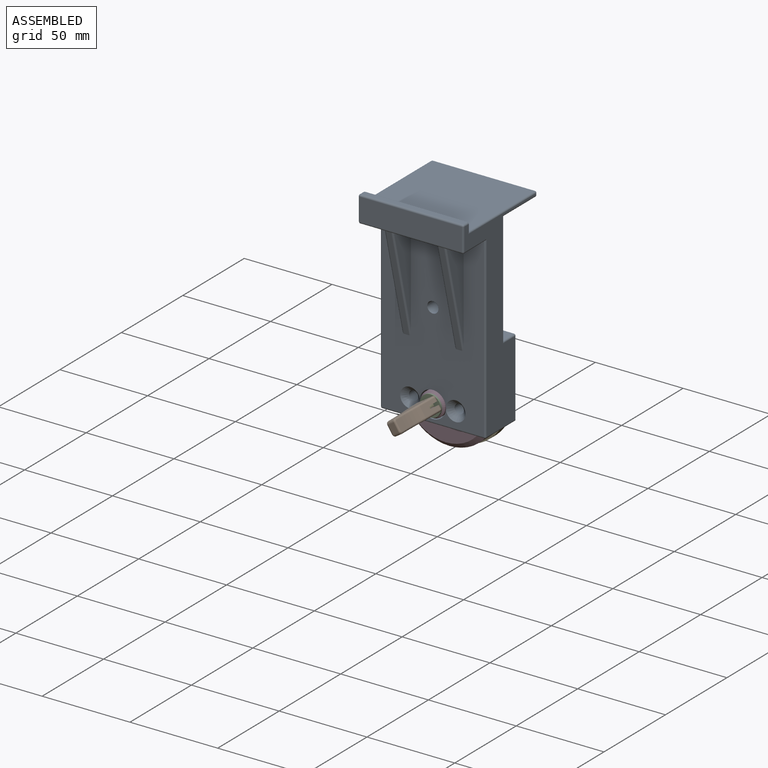
[diagram: assembled view]
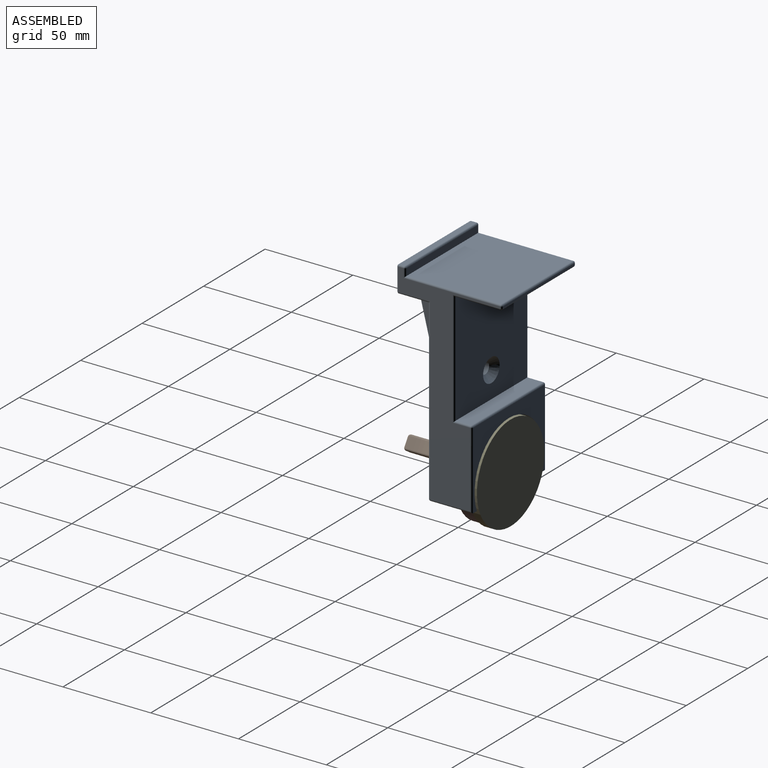
[diagram: assembled view, second angle]
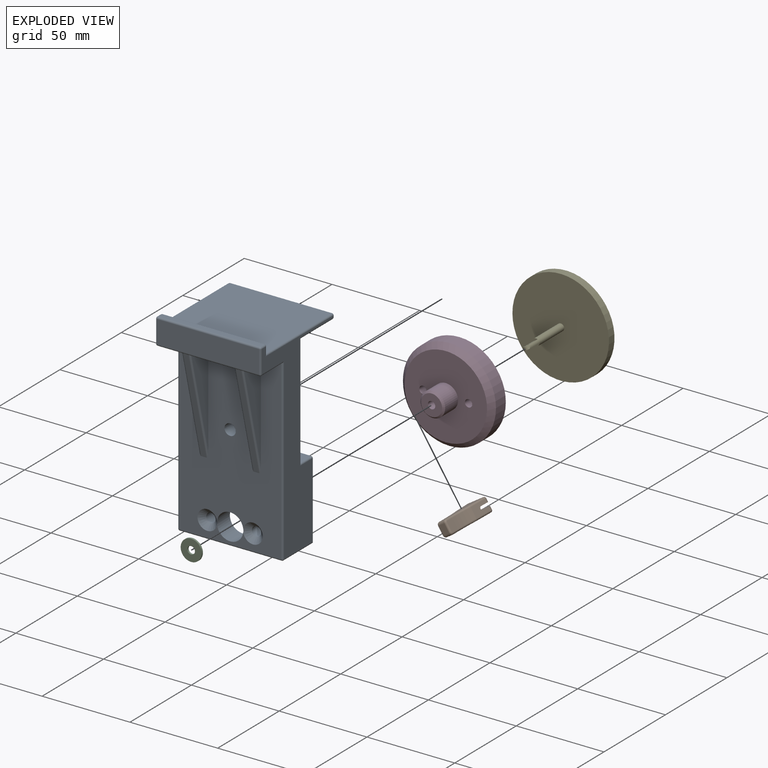
[diagram: exploded view]
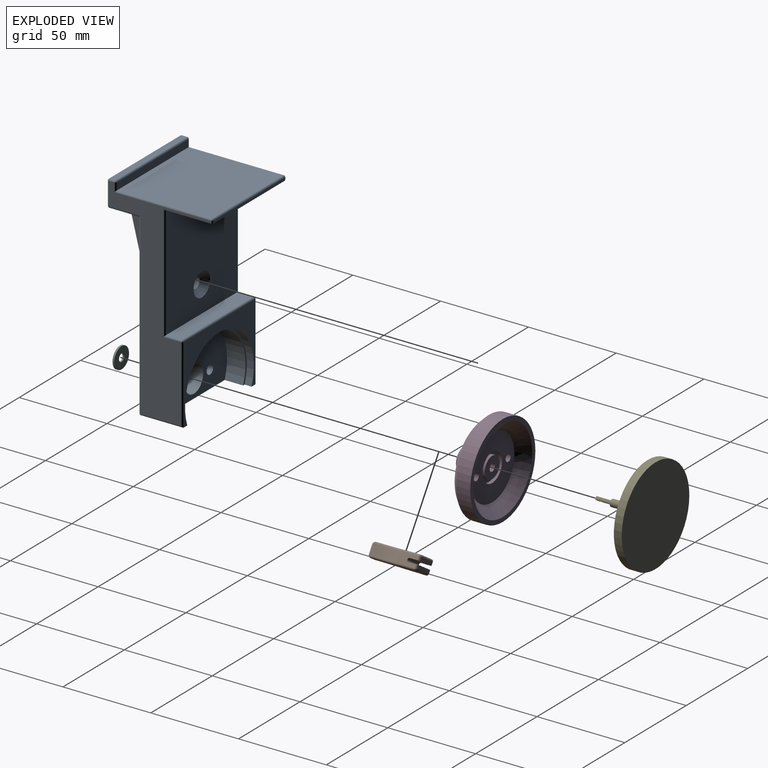
[diagram: exploded view, second angle]
ASSEMBLY  parts=5 mates=9
PART A: 80 faces, bbox 60x60x117 mm
  f0: plane 101x58mm, normal (0,-1,0), area 4855.8mm2, adj f1,f12,f19,f21,f47,f50,f63,f68
  f1: cylinder r=7.5mm len=15mm, axis (0,1,0), area 494.6mm2, adj f0,f18,f19,f21
  f2: plane 58x24mm, normal (0,0,-1), area 658.4mm2, adj f3,f15,f16,f17,f18,f51,f54,f63
  f3: plane 58x44mm, normal (0,1,0), area 772.6mm2, adj f2,f15,f55,f58,f61
  f4: plane 58x9mm, normal (0,0,1), area 522mm2, adj f5,f56,f57,f61
  f5: plane 64x58mm, normal (0,1,0), area 3570.1mm2, adj f4,f6,f52,f53,f79
  f6: plane 58x26mm, normal (0,0,-1), area 1508mm2, adj f5,f40,f48,f49
  f7: plane 58x1mm, normal (0,1,0), area 58mm2, adj f30,f39,f40,f41
  f8: plane 58x54mm, normal (0,0,1), area 3132mm2, adj f9,f29,f30,f31
  f9: plane 58x4mm, normal (0,1,0), area 232mm2, adj f8,f23,f25,f26
  f10: plane 58x3mm, normal (0,0,1), area 174mm2, adj f23,f28,f32,f33
  f11: plane 58x13mm, normal (0,-1,0), area 754mm2, adj f33,f38,f42,f66
  f12: plane 58x17mm, normal (0,0,-1), area 836.9mm2, adj f0,f43,f46,f66,f68,f69,f70,f71
  f13: plane 115x58mm, normal (1,0,0), area 2046mm2, adj f25,f28,f29,f38,f39,f43,f47,f48
  f14: plane 115x58mm, normal (-1,0,0), area 2046mm2, adj f26,f31,f32,f41,f42,f46,f49,f50
  f15: cylinder r=28mm len=56mm, axis (0,1,0), area 433.7mm2, adj f2,f3,f16
  f16: plane 56x38mm, normal (0,1,0), area 117.4mm2, adj f2,f15,f17
  f17: cylinder r=26.9mm len=53.8mm, axis (0,1,0), area 1102.5mm2, adj f2,f16,f18
  f18: plane 53.8x36.9mm, normal (0,1,0), area 1441.1mm2, adj f1,f2,f17,f20,f22
  f19: cone r=2.65mm half-angle=45deg, axis (0,-1,0), area 108mm2, adj f0,f1,f20
  f20: cylinder r=2.65mm len=7.55mm, axis (0,-1,0), area 125.7mm2, adj f18,f19
  f21: cone r=2.65mm half-angle=45deg, axis (0,-1,0), area 108mm2, adj f0,f1,f22
  f22: cylinder r=2.65mm len=7.55mm, axis (0,-1,0), area 125.7mm2, adj f18,f21
  f23: cylinder r=1mm len=58mm, axis (-1,0,0), area 91.1mm2, adj f9,f10,f24,f27
  f24: sphere r=1mm, area 1.6mm2, adj f23,f25,f28
  f25: cylinder r=1mm len=5mm, axis (0,0,-1), area 6.9mm2, adj f9,f13,f24,f29
  f26: cylinder r=1mm len=5mm, axis (0,0,1), area 6.9mm2, adj f9,f14,f27,f31
  f27: sphere r=1mm, area 1.6mm2, adj f23,f26,f32
  f28: cylinder r=1mm len=3mm, axis (0,1,0), area 4.7mm2, adj f10,f13,f24,f34
  f29: cylinder r=1mm len=55mm, axis (0,1,0), area 85.4mm2, adj f8,f13,f25,f35
  f30: cylinder r=1mm len=58mm, axis (-1,0,0), area 91.1mm2, adj f7,f8,f35,f36
  f31: cylinder r=1mm len=55mm, axis (0,-1,0), area 85.4mm2, adj f8,f14,f26,f36
  f32: cylinder r=1mm len=3mm, axis (0,-1,0), area 4.7mm2, adj f10,f14,f27,f37
  f33: cylinder r=1mm len=58mm, axis (-1,0,0), area 91.1mm2, adj f10,f11,f34,f37
  f34: sphere r=1mm, area 1.6mm2, adj f28,f33,f38
  f35: sphere r=1mm, area 1.6mm2, adj f29,f30,f39
  f36: sphere r=1mm, area 1.6mm2, adj f30,f31,f41
  f37: sphere r=1mm, area 1.6mm2, adj f32,f33,f42
  f38: cylinder r=1mm len=13mm, axis (0,0,1), area 20.4mm2, adj f11,f13,f34,f67
  f39: cylinder r=1mm len=1mm, axis (0,0,-1), area 1.6mm2, adj f7,f13,f35,f44
  f40: cylinder r=1mm len=58mm, axis (-1,0,0), area 91.1mm2, adj f6,f7,f44,f45
  f41: cylinder r=1mm len=1mm, axis (0,0,1), area 1.6mm2, adj f7,f14,f36,f45
  f42: cylinder r=1mm len=13mm, axis (0,0,-1), area 20.4mm2, adj f11,f14,f37,f65
  f43: cylinder r=1mm len=18mm, axis (0,-1,0), area 27.3mm2, adj f12,f13,f47,f67
  f44: sphere r=1mm, area 1.6mm2, adj f39,f40,f48
  f45: sphere r=1mm, area 1.6mm2, adj f40,f41,f49
  f46: cylinder r=1mm len=18mm, axis (0,1,0), area 27.3mm2, adj f12,f14,f50,f65
  f47: cylinder r=1mm len=102mm, axis (0,0,1), area 159.2mm2, adj f0,f13,f43,f64
  f48: cylinder r=1mm len=27mm, axis (0,-1,0), area 41.4mm2, adj f6,f13,f44,f52
  f49: cylinder r=1mm len=27mm, axis (0,1,0), area 41.4mm2, adj f6,f14,f45,f53
  f50: cylinder r=1mm len=102mm, axis (0,0,-1), area 159.2mm2, adj f0,f14,f46,f62
  f51: cylinder r=1mm len=24mm, axis (0,-1,0), area 37.1mm2, adj f2,f13,f55,f64
  f52: cylinder r=1mm len=66mm, axis (0,0,-1), area 101.7mm2, adj f5,f13,f48,f56
  f53: cylinder r=1mm len=66mm, axis (0,0,1), area 101.7mm2, adj f5,f14,f49,f57
  f54: cylinder r=1mm len=24mm, axis (0,1,0), area 37.1mm2, adj f2,f14,f58,f62
  f55: cylinder r=1mm len=44mm, axis (0,0,-1), area 68.5mm2, adj f3,f13,f51,f59
  f56: cylinder r=1mm len=10mm, axis (0,1,0), area 14.7mm2, adj f4,f13,f52,f59
  f57: cylinder r=1mm len=10mm, axis (0,-1,0), area 14.7mm2, adj f4,f14,f53,f60
  f58: cylinder r=1mm len=44mm, axis (0,0,1), area 68.5mm2, adj f3,f14,f54,f60
  f59: sphere r=1mm, area 1.6mm2, adj f55,f56,f61
  f60: sphere r=1mm, area 1.6mm2, adj f57,f58,f61
  f61: cylinder r=1mm len=58mm, axis (-1,0,0), area 91.1mm2, adj f3,f4,f59,f60
  f62: sphere r=1mm, area 1.6mm2, adj f50,f54,f63
  f63: cylinder r=1mm len=58mm, axis (-1,0,0), area 91.1mm2, adj f0,f2,f62,f64
  f64: sphere r=1mm, area 1.6mm2, adj f47,f51,f63
  f65: sphere r=1mm, area 1.6mm2, adj f42,f46,f66
  f66: cylinder r=1mm len=58mm, axis (-1,0,0), area 91.1mm2, adj f11,f12,f65,f67
  f67: sphere r=1mm, area 1.6mm2, adj f38,f43,f66
  f68: plane 60x15mm, normal (0,-0.97,-0.24), area 185.5mm2, adj f0,f12,f71,f72
  f69: plane 55.88x13.97mm, normal (-1,0,0), area 390.3mm2, adj f0,f12,f72
  f70: plane 55.88x13.97mm, normal (1,0,0), area 390.3mm2, adj f0,f12,f71
  f71: cylinder r=1mm len=60.24mm, axis (0,-0.24,0.97), area 94.7mm2, adj f0,f12,f68,f70
  f72: cylinder r=1mm len=60.24mm, axis (0,0.24,-0.97), area 94.7mm2, adj f0,f12,f68,f69
  f73: plane 60x15mm, normal (0,-0.97,-0.24), area 185.5mm2, adj f0,f12,f76,f77
  f74: plane 55.88x13.97mm, normal (-1,0,0), area 390.3mm2, adj f0,f12,f77
  f75: plane 55.88x13.97mm, normal (1,0,0), area 390.3mm2, adj f0,f12,f76
  f76: cylinder r=1mm len=60.24mm, axis (0,-0.24,0.97), area 94.7mm2, adj f0,f12,f73,f75
  f77: cylinder r=1mm len=60.24mm, axis (0,0.24,-0.97), area 94.7mm2, adj f0,f12,f73,f74
  f78: cylinder r=3.2mm len=11.48mm, axis (0,1,0), area 230.8mm2, adj f0,f79
  f79: cone r=3.2mm half-angle=45deg, axis (0,1,0), area 155.1mm2, adj f5,f78
PART B: 46 faces, bbox 12.9x30.3x8.3 mm
  f0: torus R=0.5mm, axis (0,0,-1), area 3mm2, adj f8,f15,f23,f30
  f1: torus R=0.5mm, axis (0,0,1), area 3mm2, adj f11,f12,f29,f31
  f2: cylinder r=0.9mm len=3mm, axis (0,0,1), area 17mm2, adj f13,f29
  f3: cylinder r=1.5mm len=2mm, axis (0,0,1), area 5.1mm2, adj f6,f13,f20,f21
  f4: cylinder r=0.9mm len=3mm, axis (0,0,1), area 17mm2, adj f14,f30
  f5: cylinder r=1.5mm len=2mm, axis (0,0,1), area 5.1mm2, adj f7,f14,f16,f21
  f6: torus R=0.5mm, axis (0,0,1), area 3mm2, adj f3,f29,f31,f32
  f7: torus R=0.5mm, axis (0,0,-1), area 3mm2, adj f5,f23,f30,f34
  f8: cylinder r=1.5mm len=2mm, axis (0,0,1), area 5.1mm2, adj f0,f9,f14,f16
  f9: plane 10.57x6.26mm, normal (-0.99,0.13,0), area 52.1mm2, adj f8,f10,f11,f12,f13,f14,f15,f22
  f10: cylinder r=38mm len=12.6mm, axis (0,0,1), area 77.1mm2, adj f9,f17,f18,f19
  f11: cylinder r=1mm len=10.44mm, axis (0.13,0.99,0), area 16.3mm2, adj f1,f9,f18,f29
  f12: cylinder r=1.5mm len=2mm, axis (0,0,1), area 5.1mm2, adj f1,f9,f13,f20
  f13: plane 12.62x6mm, normal (0,0,-1), area 69.8mm2, adj f2,f3,f9,f12,f20,f21,f22
  f14: plane 12.62x6mm, normal (0,0,1), area 69.8mm2, adj f4,f5,f8,f9,f16,f21,f22
  f15: cylinder r=1mm len=10.44mm, axis (-0.13,-0.99,0), area 16.3mm2, adj f0,f9,f19,f30
  f16: plane 9.62x2mm, normal (0,-1,0), area 19.2mm2, adj f5,f8,f14,f23
  f17: plane 6x4.4mm, normal (-1,0,0), area 26.3mm2, adj f10,f24,f25,f26,f27,f28
  f18: torus R=39mm, axis (0,0,1), area 20.3mm2, adj f10,f11,f27,f29
  f19: torus R=39mm, axis (0,0,-1), area 20.3mm2, adj f10,f15,f28,f30
  f20: plane 9.62x2mm, normal (0,-1,0), area 19.2mm2, adj f3,f12,f13,f31
  f21: plane 10.56x6.25mm, normal (0.99,0.12,0), area 52.1mm2, adj f3,f5,f13,f14,f22,f32,f33,f34
  f22: cylinder r=1mm len=11.51mm, axis (1,0,0), area 36.2mm2, adj f9,f13,f14,f21
  f23: cylinder r=1mm len=9.62mm, axis (1,0,0), area 15.1mm2, adj f0,f7,f16,f30
  f24: torus R=0.5mm, axis (-1,0,0), area 2.8mm2, adj f17,f25,f28,f38
  f25: cylinder r=1mm len=5mm, axis (0,0,1), area 7.9mm2, adj f17,f24,f26,f42
  f26: torus R=0.5mm, axis (-1,0,0), area 2.8mm2, adj f17,f25,f27,f36
  f27: cylinder r=1mm len=3.9mm, axis (0,1,0), area 6.1mm2, adj f17,f18,f26,f29
  f28: cylinder r=1mm len=3.9mm, axis (0,-1,0), area 6.1mm2, adj f17,f19,f24,f30
  f29: plane 27.5x10.62mm, normal (0,0,1), area 178.8mm2, adj f1,f2,f6,f11,f18,f27,f31,f32
  f30: plane 27.5x10.62mm, normal (0,0,-1), area 178.8mm2, adj f0,f4,f7,f15,f19,f23,f28,f34
  f31: cylinder r=1mm len=9.62mm, axis (-1,0,0), area 15.1mm2, adj f1,f6,f20,f29
  f32: cylinder r=1mm len=10.44mm, axis (0.12,-0.99,0), area 16.3mm2, adj f6,f21,f29,f35
  f33: cylinder r=38mm len=12.6mm, axis (0,0,1), area 77.1mm2, adj f21,f35,f39,f41
  f34: cylinder r=1mm len=10.44mm, axis (-0.12,0.99,0), area 16.3mm2, adj f7,f21,f30,f39
  f35: torus R=39mm, axis (0,0,1), area 20.3mm2, adj f29,f32,f33,f37
  f36: cylinder r=1.5mm len=3.7mm, axis (1,0,0), area 8.7mm2, adj f26,f29,f42,f43
  f37: cylinder r=1mm len=3.9mm, axis (0,-1,0), area 6.1mm2, adj f29,f35,f41,f43
  f38: cylinder r=1.5mm len=3.7mm, axis (-1,0,0), area 8.7mm2, adj f24,f30,f42,f44
  f39: torus R=39mm, axis (0,0,-1), area 20.3mm2, adj f30,f33,f34,f40
  f40: cylinder r=1mm len=3.9mm, axis (0,1,0), area 6.1mm2, adj f30,f39,f41,f44
  f41: plane 6x4.4mm, normal (1,0,0), area 26.3mm2, adj f33,f37,f40,f43,f44,f45
  f42: plane 5x3.7mm, normal (0,1,0), area 18.5mm2, adj f25,f36,f38,f45
  f43: torus R=0.5mm, axis (1,0,0), area 2.8mm2, adj f36,f37,f41,f45
  f44: torus R=0.5mm, axis (1,0,0), area 2.8mm2, adj f38,f40,f41,f45
  f45: cylinder r=1mm len=5mm, axis (0,0,1), area 7.9mm2, adj f41,f42,f43,f44
PART C: 5 faces, bbox 12x12x1 mm
  f0: cone r=5.99mm half-angle=45deg, axis (0,0,-1), area 0.5mm2, adj f2,f3
  f1: cylinder r=2.15mm len=4.3mm, axis (0,0,-1), area 13.5mm2, adj f3,f4
  f2: cylinder r=6mm len=12mm, axis (0,0,-1), area 37.3mm2, adj f0,f4
  f3: plane 11.98x11.98mm, normal (0,0,1), area 98.2mm2, adj f0,f1
  f4: plane 12x12mm, normal (0,0,-1), area 98.6mm2, adj f1,f2
PART D: 16 faces, bbox 53x22.5x53 mm
  f0: cone r=23.5mm half-angle=45deg, axis (0,-1,0), area 666.4mm2, adj f9,f12
  f1: cone r=6mm half-angle=45deg, axis (0,-1,0), area 57.8mm2, adj f8,f13
  f2: cylinder r=2.1mm len=5mm, axis (0,1,0), area 66mm2, adj f10,f12
  f3: cylinder r=2.1mm len=5mm, axis (0,1,0), area 66mm2, adj f10,f12
  f4: cylinder r=2.1mm len=16.5mm, axis (0,1,0), area 217.7mm2, adj f13,f15
  f5: cylinder r=6mm len=12mm, axis (0,-1,0), area 75.4mm2, adj f14,f15
  f6: cylinder r=8mm len=16mm, axis (0,-1,0), area 100.5mm2, adj f10,f14
  f7: cone r=18mm half-angle=45deg, axis (0,-1,0), area 1119.6mm2, adj f10,f11
  f8: cylinder r=7mm len=14mm, axis (0,-1,0), area 461.8mm2, adj f1,f12
  f9: cylinder r=26.5mm len=53mm, axis (0,-1,0), area 1332mm2, adj f0,f11
  f10: plane 36x36mm, normal (0,-1,0), area 789.1mm2, adj f2,f3,f6,f7
  f11: plane 53x53mm, normal (0,-1,0), area 396.6mm2, adj f7,f9
  f12: plane 47x47mm, normal (0,1,0), area 1553.3mm2, adj f0,f2,f3,f8
  f13: plane 12x12mm, normal (0,1,0), area 99.2mm2, adj f1,f4
  f14: plane 16x16mm, normal (0,-1,0), area 88mm2, adj f5,f6
  f15: plane 12x12mm, normal (0,-1,0), area 99.2mm2, adj f4,f5
PART E: 10 faces, bbox 55x33.7x55 mm
  f0: cylinder r=0.9mm len=1.8mm, axis (0,0,-1), area 10.2mm2, adj f3,f4
  f1: cylinder r=27.5mm len=55mm, axis (0,-1,0), area 777.5mm2, adj f5,f6
  f2: cylinder r=2mm len=28.1mm, axis (0,-1,0), area 281.7mm2, adj f3,f4,f5,f7,f8,f9
  f3: plane 9x3.57mm, normal (0,0,-1), area 28.5mm2, adj f0,f2,f7,f9
  f4: plane 9x3.57mm, normal (0,0,1), area 28.5mm2, adj f0,f2,f8,f9
  f5: plane 55x55mm, normal (0,1,0), area 2363.3mm2, adj f1,f2
  f6: plane 55x55mm, normal (0,-1,0), area 2375.8mm2, adj f1
  f7: plane 3.57x1.1mm, normal (0,1,0), area 2.8mm2, adj f2,f3
  f8: plane 3.57x1.1mm, normal (0,1,0), area 2.8mm2, adj f2,f4
  f9: cylinder r=2mm len=4mm, axis (0,0,-1), area 9.7mm2, adj f2,f3,f4
PLACE A at identity fixed
PLACE B rot(axis=(-0.96,0,-0.29),180deg) t=(30.07,-42.3,9.93)mm
PLACE C rot(axis=(0.21,0.69,-0.69),156.7deg) t=(30,-26,10)mm
PLACE D rot(axis=(1,0,0),180deg) t=(30,-3.5,10)mm
PLACE E rot(axis=(0.96,0,0.29),180deg) t=(30,1,10)mm
MATE cylindrical D.f0 <-> A.f1  axis (0,1,0) through (30,-14.5,10)mm
MATE cylindrical C.f0 <-> E.f2  axis (0,1,0) through (30,-26.5,10)mm
MATE cylindrical B.f2 <-> E.f0  axis (-0.55,0,0.84) through (29.51,-30,10.75)mm
MATE planar D.f0 <-> A.f18  axis (0,-1,0) through (30,-14.5,10)mm
MATE planar E.f2 <-> D.f0  axis (0,-1,0) through (30,-3.5,10)mm
MATE planar E.f0 <-> B.f2  axis (-0.55,0,0.84) through (29.51,-30,10.75)mm
MATE cylindrical E.f2 <-> D.f0  axis (0,1,0) through (30,-17.63,10)mm
MATE cylindrical D.f3 <-> A.f20  axis (0,-1,0) through (43,-14.5,10)mm
MATE planar C.f0 <-> D.f0  axis (0,1,0) through (30,-26,10)mm
